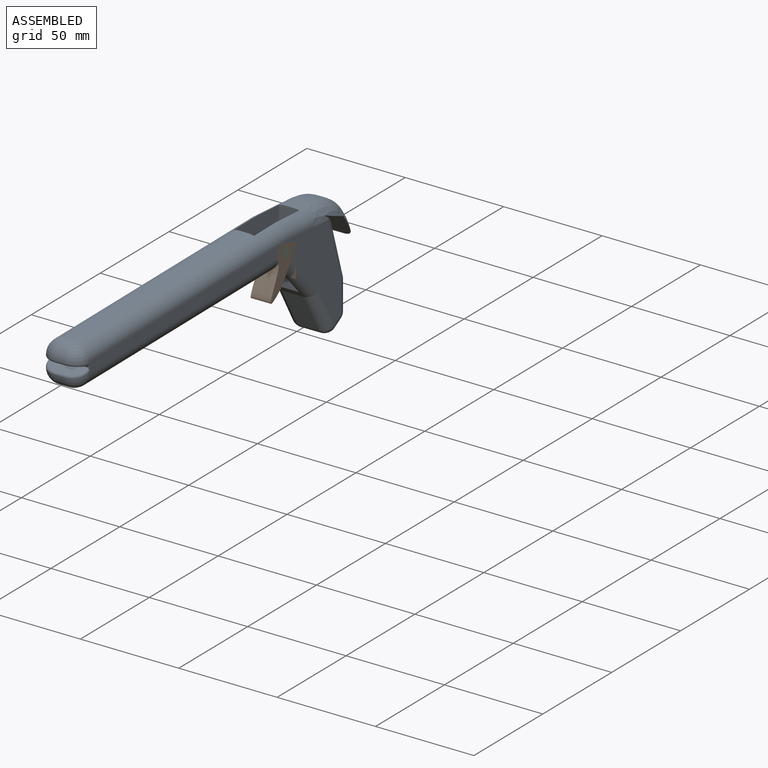
[diagram: assembled view]
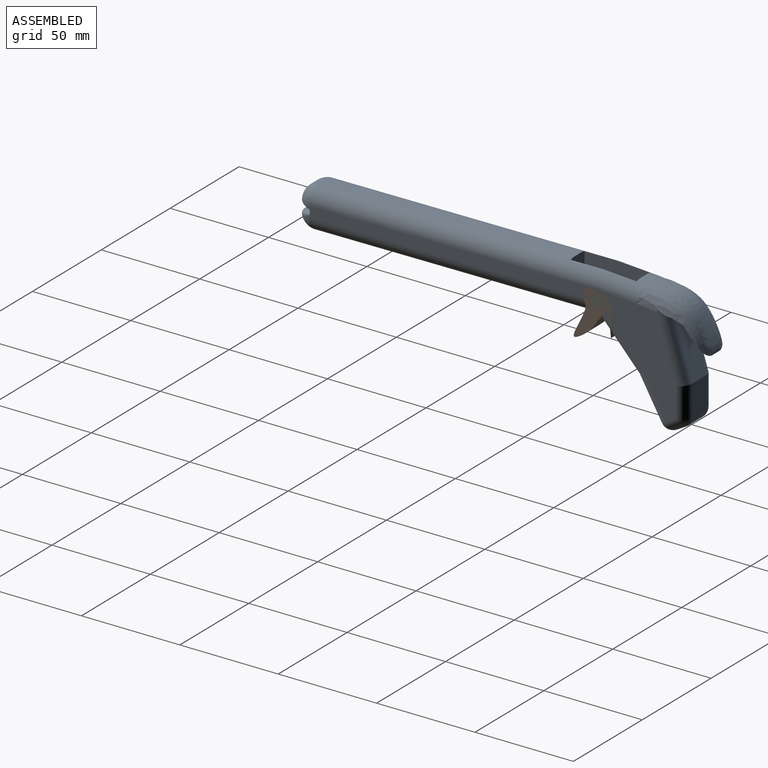
[diagram: assembled view, second angle]
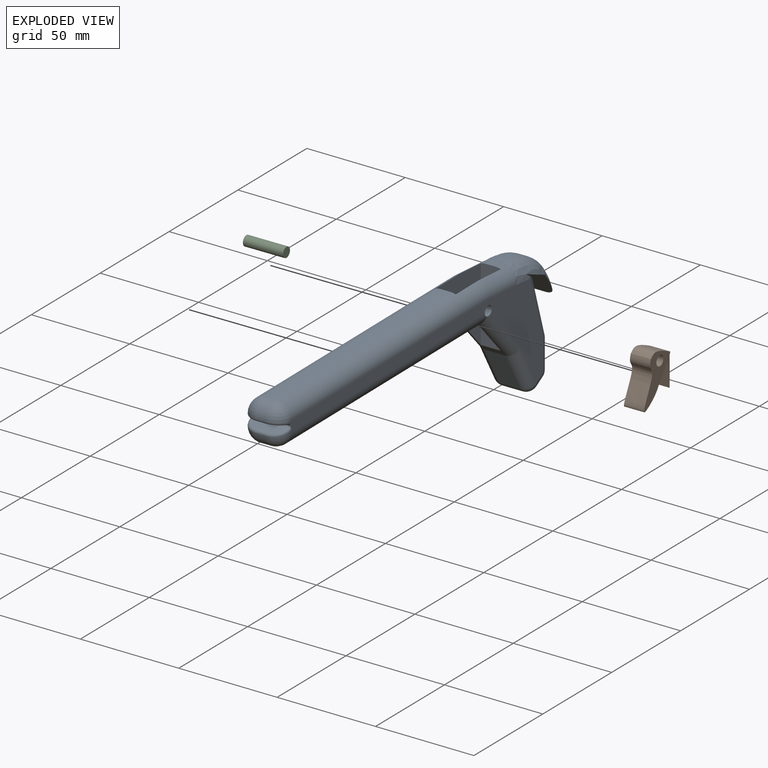
[diagram: exploded view]
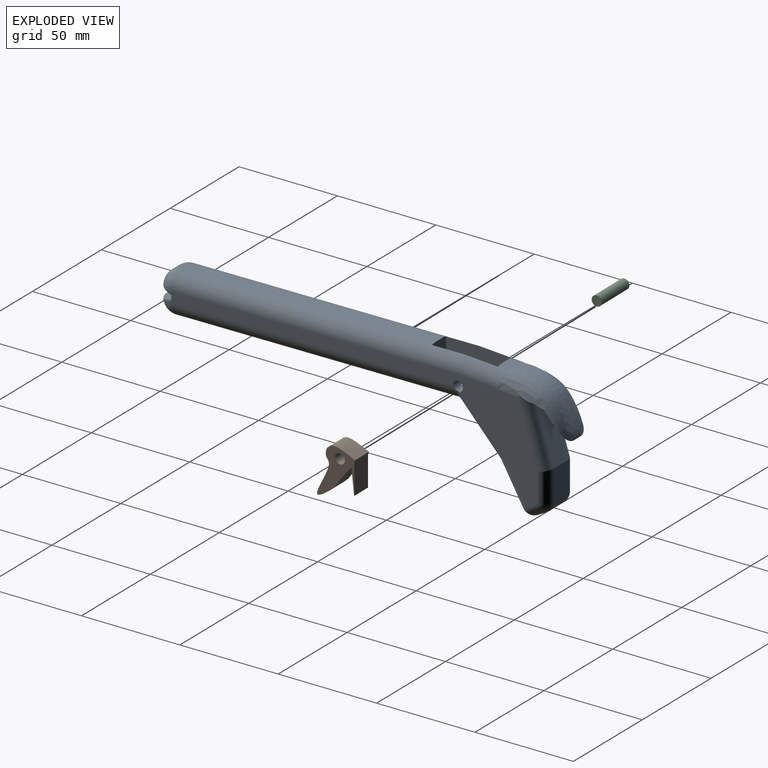
[diagram: exploded view, second angle]
ASSEMBLY  parts=3 mates=2
PART A: 67 faces, bbox 21.3x206.6x65.2 mm
  f0: cylinder r=7.62mm len=6.58mm, axis (0,-0.01,-1), area 4.5mm2, adj f19,f32,f61
  f1: cylinder r=7.62mm len=3.53mm, axis (0,-0.01,-1), area 2mm2, adj f19,f26,f65
  f2: cylinder r=7.62mm len=6.58mm, axis (0,0.01,1), area 4.5mm2, adj f18,f34,f57
  f3: cylinder r=7.62mm len=3.53mm, axis (0,0.01,1), area 2mm2, adj f18,f31,f62
  f4: cylinder r=2.54mm len=5.08mm, axis (-1,0,0), area 80.1mm2, adj f19,f23,f24,f40
  f5: plane 128.32x5.08mm, normal (0,0,-1), area 651.9mm2, adj f21,f24,f28,f29
  f6: plane 10.16x3.29mm, normal (0,-0.74,-0.67), area 45.2mm2, adj f14,f20,f38,f40
  f7: plane 27.94x10.16mm, normal (0,0.96,0.29), area 297mm2, adj f8,f17,f42,f52
  f8: plane 20.18x7.85mm, normal (0,0.6,0.8), area 177.4mm2, adj f7,f9,f25,f35,f42,f52
  f9: plane 20.06x14.3mm, normal (0,-0.38,-0.93), area 304.7mm2, adj f8,f10,f25,f35
  f10: plane 18.61x13.73mm, normal (0,-0.8,-0.6), area 282.8mm2, adj f9,f11,f25,f35
  f11: extruded ~32.47x25.3mm, area 232.9mm2, adj f10,f12,f25,f35
  f12: plane 5.08x4.18mm, normal (0,0.07,1), area 21.3mm2, adj f11,f20,f27,f37
  f13: plane 128.26x5.08mm, normal (0,0,1), area 651.6mm2, adj f21,f30,f33,f36
  f14: plane 19.57x11.12mm, normal (0,-0.87,-0.49), area 228.7mm2, adj f6,f39,f43,f44
  f15: plane 10.16x4.76mm, normal (0,0.49,-0.87), area 55.7mm2, adj f44,f45,f49,f50
  f16: cylinder r=2.54mm len=5.08mm, axis (-1,0,0), area 80.1mm2, adj f18,f22,f28,f38
  f17: plane 15.76x10.16mm, normal (0,1,0), area 160.1mm2, adj f7,f46,f50,f53
  f18: plane 184.8x51.82mm, normal (1,0,0), area 1749.5mm2, adj f2,f3,f16,f28,f35,f36,f37,f38
  f19: plane 184.8x51.82mm, normal (-1,0,0), area 1749.5mm2, adj f0,f1,f4,f24,f25,f27,f30,f40
  f20: plane 37.94x10.18mm, normal (0,-1,0), area 384.5mm2, adj f6,f12,f22,f23,f27,f37
  f21: plane 20.85x10.16mm, normal (0,1,0), area 210.4mm2, adj f5,f13,f22,f23,f24,f28,f30,f36
  f22: plane 38.65x33.19mm, normal (-1,0,0), area 791.9mm2, adj f16,f20,f21,f28,f36,f37,f38
  f23: plane 38.65x33.19mm, normal (1,0,0), area 791.9mm2, adj f4,f20,f21,f24,f27,f30,f40
  f24: cylinder r=7.62mm len=144.52mm, axis (0,1,0), area 1684.9mm2, adj f4,f5,f19,f21,f23,f26,f40
  f25: bspline ~34.54x25.79mm, area 399.4mm2, adj f8,f9,f10,f11,f19,f27,f52
  f26: sphere r=7.62mm, area 88mm2, adj f1,f24,f29,f66
  f27: cylinder r=7.62mm len=21.33mm, axis (0,-1,0.07), area 205.1mm2, adj f12,f19,f20,f23,f25,f30
  f28: cylinder r=7.62mm len=144.52mm, axis (0,-1,0), area 1684.9mm2, adj f5,f16,f18,f21,f22,f31,f38
  f29: cylinder r=7.62mm len=7.58mm, axis (-1,0,0), area 56.6mm2, adj f5,f26,f31,f64
  f30: cylinder r=7.62mm len=144.84mm, axis (0,-1,0), area 1689.6mm2, adj f13,f19,f21,f23,f27,f32
  f31: sphere r=7.62mm, area 88mm2, adj f3,f28,f29,f63
  f32: sphere r=7.62mm, area 90.5mm2, adj f0,f30,f33,f60
  f33: cylinder r=7.62mm len=7.62mm, axis (1,0,0), area 59.9mm2, adj f13,f32,f34,f59
  f34: sphere r=7.62mm, area 90.4mm2, adj f2,f33,f36,f58
  f35: bspline ~34.54x25.79mm, area 399.4mm2, adj f8,f9,f10,f11,f18,f37,f42
  f36: cylinder r=7.62mm len=144.84mm, axis (0,1,0), area 1689.6mm2, adj f13,f18,f21,f22,f34,f37
  f37: cylinder r=7.62mm len=21.33mm, axis (0,1,-0.07), area 205.1mm2, adj f12,f18,f20,f22,f35,f36
  f38: cylinder r=5.08mm len=28.52mm, axis (0,-0.67,0.74), area 256.4mm2, adj f6,f16,f18,f22,f28,f39
  f39: cylinder r=5.08mm len=22.58mm, axis (0,-0.49,0.87), area 181.9mm2, adj f14,f18,f38,f41
  f40: cylinder r=5.08mm len=28.52mm, axis (0,0.67,-0.74), area 256.4mm2, adj f4,f6,f19,f23,f24,f43
  f41: sphere r=5.08mm, area 38.8mm2, adj f39,f44,f45
  f42: cylinder r=5.08mm len=34.75mm, axis (0,0.29,-0.96), area 249.1mm2, adj f7,f8,f18,f35,f46
  f43: cylinder r=5.08mm len=22.58mm, axis (0,0.49,-0.87), area 181.9mm2, adj f14,f19,f40,f47
  f44: cylinder r=5.08mm len=10.16mm, axis (-1,0,0), area 81.1mm2, adj f14,f15,f41,f47
  f45: cylinder r=5.08mm len=7.27mm, axis (0,-0.87,-0.49), area 43.7mm2, adj f15,f18,f41,f48
  f46: cylinder r=5.08mm len=15.76mm, axis (0,0,-1), area 122.7mm2, adj f17,f18,f42,f48
  f47: sphere r=5.08mm, area 45.4mm2, adj f43,f44,f49
  f48: sphere r=5.08mm, area 19.5mm2, adj f45,f46,f50
  f49: cylinder r=5.08mm len=7.27mm, axis (0,0.87,0.49), area 43.7mm2, adj f15,f19,f47,f51
  f50: cylinder r=5.08mm len=10.16mm, axis (-1,0,0), area 54.4mm2, adj f15,f17,f48,f51
  f51: sphere r=5.08mm, area 19.5mm2, adj f49,f50,f53
  f52: cylinder r=5.08mm len=34.75mm, axis (0,-0.29,0.96), area 249.1mm2, adj f7,f8,f19,f25,f53
  f53: cylinder r=5.08mm len=15.76mm, axis (0,0,1), area 122.7mm2, adj f17,f19,f51,f52
  f54: extruded ~17.53x6.44mm, area 91.3mm2, adj f56,f57,f58,f59,f60,f61
  f55: extruded ~17.53x6.53mm, area 98.9mm2, adj f56,f62,f63,f64,f65,f66
  f56: plane 21x4.08mm, normal (0,-1,0.01), area 3.2mm2, adj f18,f19,f54,f55,f57,f61,f62,f65
  f57: bspline ~8.32x4.87mm, area 15.2mm2, adj f2,f54,f56,f58
  f58: bspline ~5.95x2.72mm, area 7.2mm2, adj f34,f54,f57,f59
  f59: cylinder r=1.27mm len=5.08mm, axis (1,0,0), area 9.7mm2, adj f33,f54,f58,f60
  f60: bspline ~5.95x2.72mm, area 7.2mm2, adj f32,f54,f59,f61
  f61: bspline ~8.6x5.42mm, area 15.2mm2, adj f0,f54,f56,f60
  f62: bspline ~5.62x3.06mm, area 7.9mm2, adj f3,f55,f56,f63
  f63: bspline ~8.08x5.08mm, area 14.7mm2, adj f31,f55,f62,f64
  f64: cylinder r=1.27mm len=5.08mm, axis (1,0,0), area 9.9mm2, adj f29,f55,f63,f66
  f65: bspline ~5.79x2.91mm, area 7.9mm2, adj f1,f55,f56,f66
  f66: bspline ~8.08x5.08mm, area 14.7mm2, adj f26,f55,f64,f65
PART B: 8 faces, bbox 10.2x20.2x25.7 mm
  f0: extruded ~14.22x10.16mm, area 157.9mm2, adj f1,f5,f6,f7
  f1: extruded ~22.62x17.32mm, area 499.4mm2, adj f0,f2,f6,f7
  f2: plane 12.87x10.16mm, normal (0,-0.99,-0.11), area 131.6mm2, adj f1,f3,f6,f7
  f3: plane 15.21x10.16mm, normal (0,1,0), area 154.5mm2, adj f2,f5,f6,f7
  f4: cylinder r=2.54mm len=10.16mm, axis (-1,0,0), area 162.1mm2, adj f6,f7
  f5: extruded ~10.16x1.32mm, area 14.2mm2, adj f0,f3,f6,f7
  f6: plane 25.73x20.15mm, normal (1,0,0), area 199.7mm2, adj f0,f1,f2,f3,f4,f5
  f7: plane 25.73x20.15mm, normal (-1,0,0), area 199.7mm2, adj f0,f1,f2,f3,f4,f5
PART C: 3 faces, bbox 5.1x20.3x5.1 mm
  f0: cylinder r=2.54mm len=20.32mm, axis (0,1,0), area 324.3mm2, adj f1,f2
  f1: plane 5.08x5.08mm, normal (0,-1,0), area 20.3mm2, adj f0
  f2: plane 5.08x5.08mm, normal (0,1,0), area 20.3mm2, adj f0
PLACE A rot(axis=(0,0,1),0.5deg) t=(58.95,15.1,3.4)mm
PLACE B rot(axis=(0,0,1),0.5deg) t=(64.03,15.14,3.4)mm
PLACE C rot(axis=(0,0,1),90.5deg) t=(48.79,15.01,3.4)mm
MATE slider B.f4 <-> C.f0  axis (-1,-0.01,0) through (69.11,15.18,3.4)mm
MATE slider A.f4 <-> C.f0  axis (1,0.01,0) through (69.11,15.18,3.4)mm
